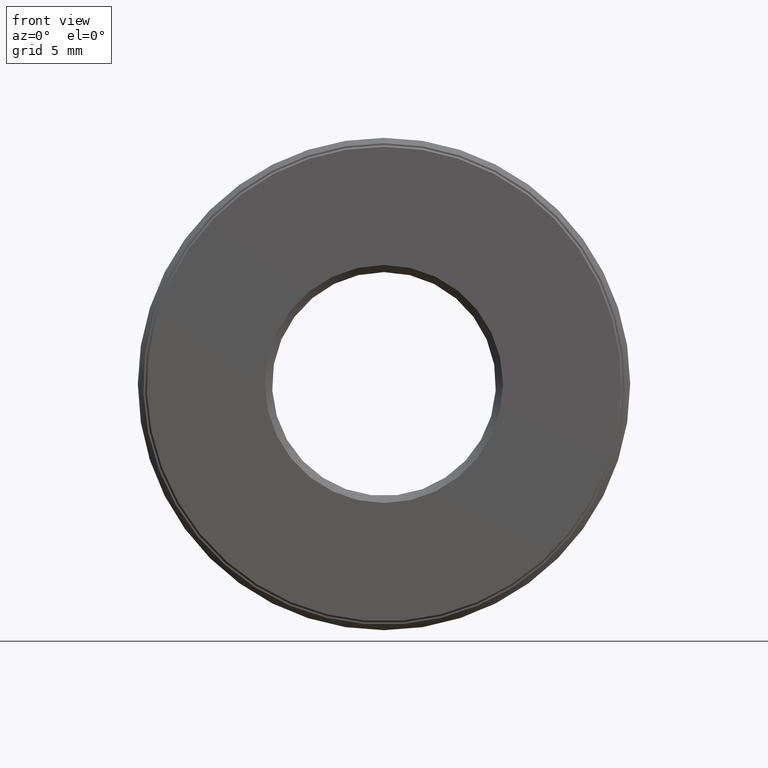
[diagram: clean part render]
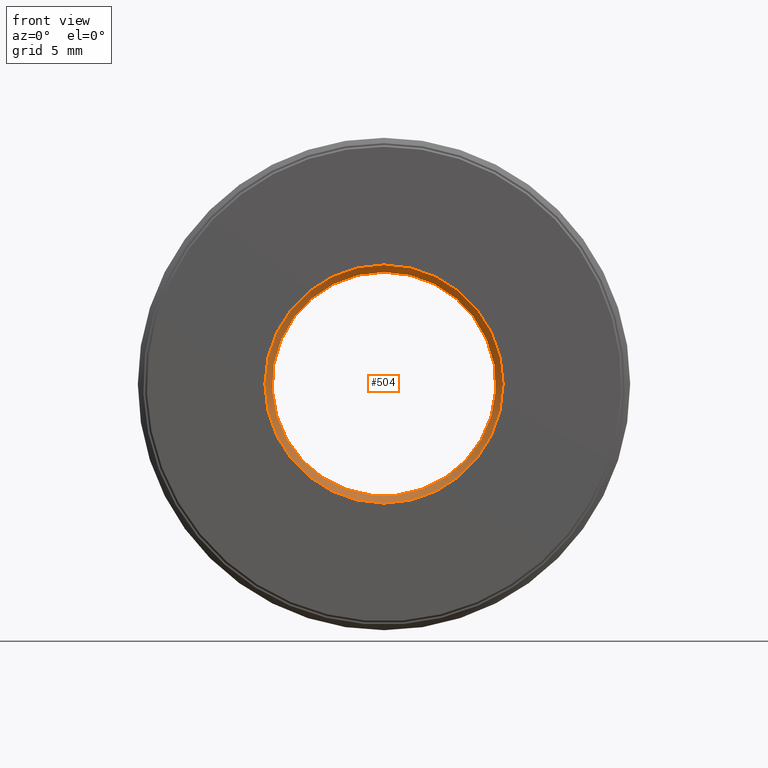
[diagram: same view with one face highlighted and labeled with its STEP entity id]
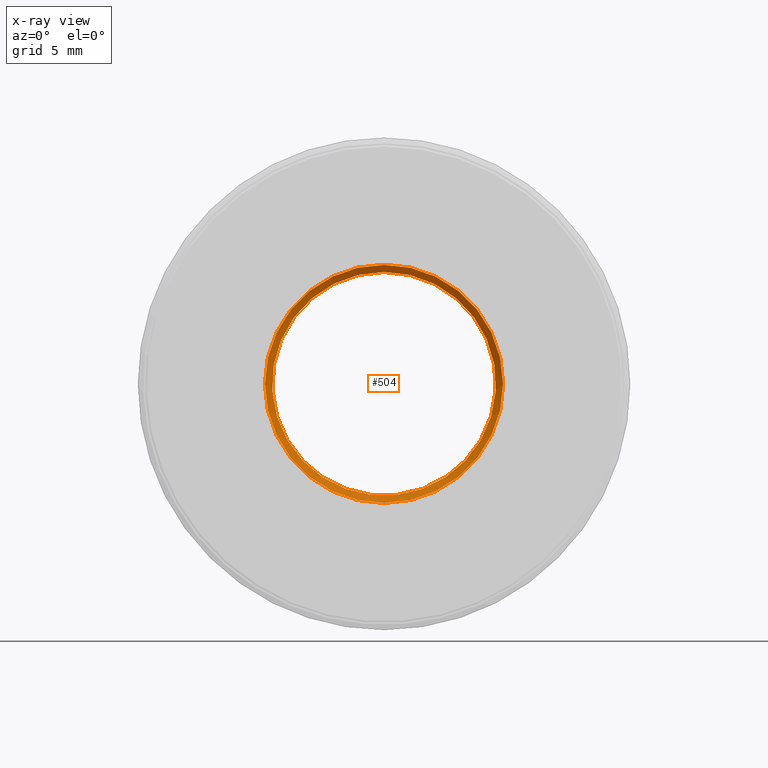
[diagram: x-ray of the same camera — body ghosted, the highlighted face saturated]
A machine part, front view. The second image highlights one B-rep face of the part: STEP entity #504.
The next image is the same camera in x-ray: the body ghosted, the highlighted face saturated — about 0% of this face is hidden behind the body in this view.
In plain terms, the highlighted conical surface has half-angle 45 deg.
Its self-contained STEP definition (entity closure, byte-faithful):
#4 = CARTESIAN_POINT ( 'NONE',  ( 0.0000000000000000000, 0.01999999999999999000, 0.0000000000000000000 ) ) ;
#7 = VERTEX_POINT ( 'NONE', #209 ) ;
#87 = ORIENTED_EDGE ( 'NONE', *, *, #403, .T. ) ;
#101 = DIRECTION ( 'NONE',  ( 0.0000000000000000000, 0.0000000000000000000, 1.000000000000000000 ) ) ;
#110 = DIRECTION ( 'NONE',  ( 0.0000000000000000000, 0.0000000000000000000, -1.000000000000000000 ) ) ;
#118 = CARTESIAN_POINT ( 'NONE',  ( 0.0000000000000000000, 3.414809992080329000E-017, 0.3325000000000000200 ) ) ;
#142 = AXIS2_PLACEMENT_3D ( 'NONE', #4, #238, #101 ) ;
#168 = EDGE_LOOP ( 'NONE', ( #87 ) ) ;
#179 = AXIS2_PLACEMENT_3D ( 'NONE', #343, #481, #110 ) ;
#191 = CIRCLE ( 'NONE', #365, 0.3325000000000000200 ) ;
#209 = CARTESIAN_POINT ( 'NONE',  ( 0.0000000000000000000, 0.01999999999999999000, 0.3124999999999999400 ) ) ;
#238 = DIRECTION ( 'NONE',  ( -0.0000000000000000000, 1.000000000000000000, -0.0000000000000000000 ) ) ;
#250 = DIRECTION ( 'NONE',  ( -0.0000000000000000000, 1.000000000000000000, -0.0000000000000000000 ) ) ;
#294 = FACE_BOUND ( 'NONE', #168, .T. ) ;
#302 = VERTEX_POINT ( 'NONE', #118 ) ;
#343 = CARTESIAN_POINT ( 'NONE',  ( 0.0000000000000000000, 0.01999999999999999000, 0.0000000000000000000 ) ) ;
#365 = AXIS2_PLACEMENT_3D ( 'NONE', #472, #250, #393 ) ;
#393 = DIRECTION ( 'NONE',  ( 0.0000000000000000000, 0.0000000000000000000, 1.000000000000000000 ) ) ;
#403 = EDGE_CURVE ( 'NONE', #7, #7, #477, .T. ) ;
#419 = FACE_OUTER_BOUND ( 'NONE', #604, .T. ) ;
#472 = CARTESIAN_POINT ( 'NONE',  ( 0.0000000000000000000, 3.414809992080329000E-017, 0.0000000000000000000 ) ) ;
#477 = CIRCLE ( 'NONE', #142, 0.3124999999999999400 ) ;
#481 = DIRECTION ( 'NONE',  ( 0.0000000000000000000, -1.000000000000000000, 0.0000000000000000000 ) ) ;
#504 = ADVANCED_FACE ( 'NONE', ( #419, #294 ), #606, .F. ) ;
#517 = EDGE_CURVE ( 'NONE', #302, #302, #191, .T. ) ;
#554 = ORIENTED_EDGE ( 'NONE', *, *, #517, .F. ) ;
#604 = EDGE_LOOP ( 'NONE', ( #554 ) ) ;
#606 = CONICAL_SURFACE ( 'NONE', #179, 0.3124999999999999400, 0.7853981633974508300 ) ;